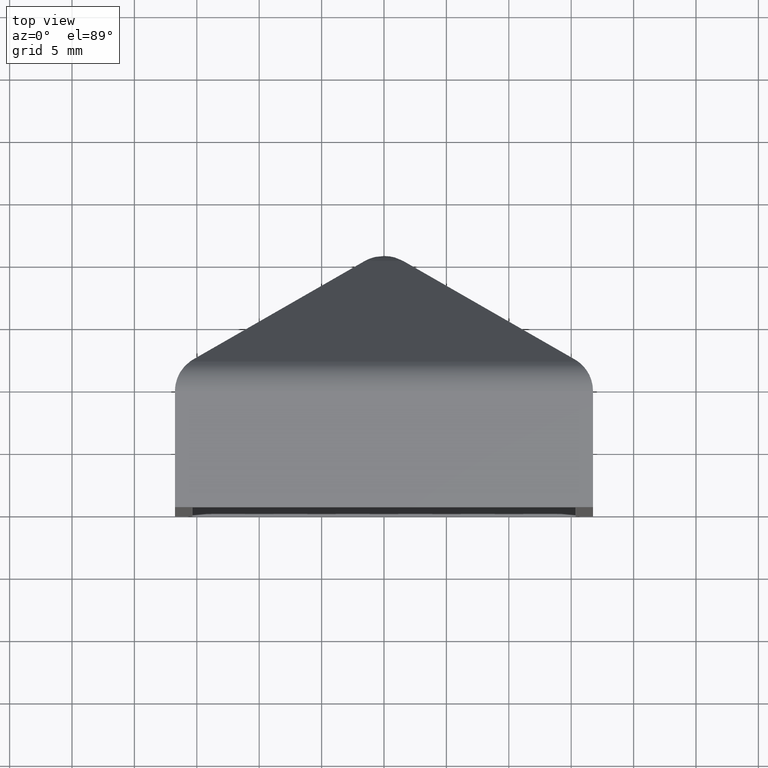
[diagram: clean part render]
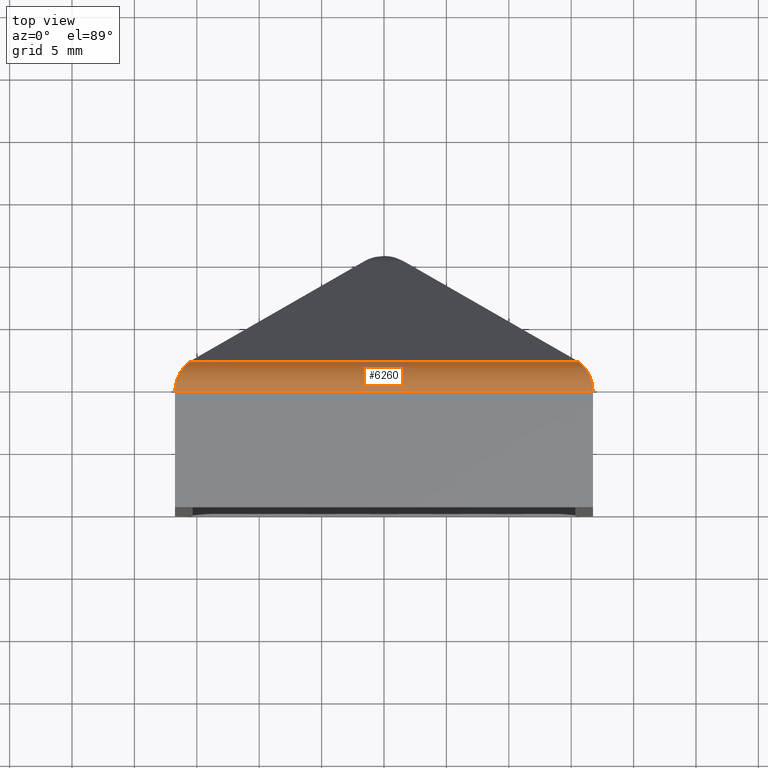
[diagram: same view with one face highlighted and labeled with its STEP entity id]
A machine part, top view. The second image highlights one B-rep face of the part: STEP entity #6260.
In plain terms, the highlighted cylindrical surface (edge-blend (fillet) strip) has radius 2.6544 mm, axis along (1, 0, -0).
Its self-contained STEP definition (entity closure, byte-faithful):
#17 = DIRECTION ( 'NONE',  ( 1.000000000000000000, 1.369541201499284725E-15, -0.000000000000000000 ) ) ;
#318 = CARTESIAN_POINT ( 'NONE',  ( -16.55965060624624030, 10.35558613479574319, 21.53297687906777469 ) ) ;
#382 = CARTESIAN_POINT ( 'NONE',  ( -16.74999999999998934, 9.296493103079967568, 21.75000000000000000 ) ) ;
#386 = CARTESIAN_POINT ( 'NONE',  ( 16.70326928354632301, 9.841064627597743808, 21.69708704955368717 ) ) ;
#445 = CARTESIAN_POINT ( 'NONE',  ( -16.70995727020544663, 9.851522843684412223, 21.70495378420360311 ) ) ;
#1237 = EDGE_CURVE ( 'NONE', #13523, #12010, #15085, .T. ) ;
#1558 = CARTESIAN_POINT ( 'NONE',  ( 15.66867918130274084, 11.60893486939139763, 20.42105435541788339 ) ) ;
#1667 = CARTESIAN_POINT ( 'NONE',  ( 16.74033533030245735, 9.572631146092316357, 21.73909050069356752 ) ) ;
#1726 = CARTESIAN_POINT ( 'NONE',  ( 16.67551108115544167, 9.973934257418351379, 21.66558790018897440 ) ) ;
#2297 = B_SPLINE_CURVE_WITH_KNOTS ( 'NONE', 3,
 ( #4275, #2778, #4161, #7082, #14112, #12531, #5839, #11384, #16614, #318, #8430, #445, #9785, #382 ),
 .UNSPECIFIED., .F., .F.,
 ( 4, 2, 2, 2, 2, 2, 4 ),
 ( 0.000000000000000000, 0.0008182723503332063348, 0.001227408525499806792, 0.001636544700666407682, 0.002045680875833008356, 0.002454817050999608813, 0.003273089401332814497 ),
 .UNSPECIFIED. ) ;
#2778 = CARTESIAN_POINT ( 'NONE',  ( -15.66888271674499578, 11.60878453490745343, 20.42138244692268145 ) ) ;
#3070 = CARTESIAN_POINT ( 'NONE',  ( 16.23055599966765072, 11.00033405241351403, 21.14613417132414952 ) ) ;
#3130 = CARTESIAN_POINT ( 'NONE',  ( 16.40821662155761373, 10.69218017578038804, 21.35687643289709570 ) ) ;
#3611 = VECTOR ( 'NONE', #17, 1000.000000000000000 ) ;
#4138 = EDGE_CURVE ( 'NONE', #13523, #12309, #2297, .T. ) ;
#4156 = ORIENTED_EDGE ( 'NONE', *, *, #9097, .T. ) ;
#4161 = CARTESIAN_POINT ( 'NONE',  ( -15.81323455271781775, 11.48398258419699758, 20.61738217118396221 ) ) ;
#4200 = VERTEX_POINT ( 'NONE', #4577 ) ;
#4275 = CARTESIAN_POINT ( 'NONE',  ( -15.53236989041281291, 11.70961505891845533, 20.20132888707435015 ) ) ;
#4577 = CARTESIAN_POINT ( 'NONE',  ( 16.74999999999999289, 9.296493103079967568, 21.75000000000000000 ) ) ;
#5139 = CARTESIAN_POINT ( 'NONE',  ( -26.75000000000000355, 9.296493103079908948, 21.75000000000000000 ) ) ;
#5276 = FACE_OUTER_BOUND ( 'NONE', #14677, .T. ) ;
#5356 = CARTESIAN_POINT ( 'NONE',  ( -26.75000000000000711, 11.70961505891843935, 20.20132888707435015 ) ) ;
#5472 = CARTESIAN_POINT ( 'NONE',  ( -15.53236989041281291, 11.70961505891845533, 20.20132888707435015 ) ) ;
#5724 = CARTESIAN_POINT ( 'NONE',  ( 16.09692896685115215, 11.17674144436293204, 20.98432485077248799 ) ) ;
#5839 = CARTESIAN_POINT ( 'NONE',  ( -16.28786870805078379, 10.90062456753936360, 21.21409796190396690 ) ) ;
#5844 = CARTESIAN_POINT ( 'NONE',  ( 15.81448601036917267, 11.48311307768285694, 20.61918057407262594 ) ) ;
#6260 = ADVANCED_FACE ( 'NONE', ( #5276 ), #9705, .T. ) ;
#6600 = AXIS2_PLACEMENT_3D ( 'NONE', #10994, #15022, #9447 ) ;
#7082 = CARTESIAN_POINT ( 'NONE',  ( -16.02207652911907942, 11.25817095843943072, 20.88764222282224381 ) ) ;
#8430 = CARTESIAN_POINT ( 'NONE',  ( -16.60342860595006087, 10.23206589786681953, 21.58322432880267172 ) ) ;
#8510 = VECTOR ( 'NONE', #13060, 1000.000000000000000 ) ;
#9097 = EDGE_CURVE ( 'NONE', #4200, #12010, #9371, .T. ) ;
#9371 = B_SPLINE_CURVE_WITH_KNOTS ( 'NONE', 3,
 ( #11159, #16619, #1667, #386, #1726, #12533, #15244, #9842, #3130, #3070, #5724, #5844, #1558, #12585 ),
 .UNSPECIFIED., .F., .F.,
 ( 4, 2, 2, 2, 2, 2, 4 ),
 ( 0.000000000000000000, 0.0004112258583125507879, 0.0008224517166251015757, 0.001233677574937652472, 0.001644903433250203151, 0.002467355149875301908, 0.003289806866500400665 ),
 .UNSPECIFIED. ) ;
#9447 = DIRECTION ( 'NONE',  ( -1.307062280233793687E-15, 1.000000000000000000, 0.000000000000000000 ) ) ;
#9705 = CYLINDRICAL_SURFACE ( 'NONE', #6600, 2.654385337577820358 ) ;
#9785 = CARTESIAN_POINT ( 'NONE',  ( -16.74999999999998934, 9.575787457362899602, 21.74999999999999289 ) ) ;
#9842 = CARTESIAN_POINT ( 'NONE',  ( 16.46377361363001413, 10.58147893519188187, 21.42180310184390279 ) ) ;
#10994 = CARTESIAN_POINT ( 'NONE',  ( -26.75000000000000355, 9.296493103079908948, 19.09561466242217875 ) ) ;
#11159 = CARTESIAN_POINT ( 'NONE',  ( 16.74999999999999289, 9.296493103079967568, 21.75000000000000000 ) ) ;
#11384 = CARTESIAN_POINT ( 'NONE',  ( -16.40638478427582214, 10.69564828119277777, 21.35472378617252431 ) ) ;
#11635 = ORIENTED_EDGE ( 'NONE', *, *, #1237, .F. ) ;
#12010 = VERTEX_POINT ( 'NONE', #15995 ) ;
#12309 = VERTEX_POINT ( 'NONE', #16586 ) ;
#12519 = ORIENTED_EDGE ( 'NONE', *, *, #15910, .T. ) ;
#12531 = CARTESIAN_POINT ( 'NONE',  ( -16.22358229367995719, 10.99760953595603574, 21.13684467474564244 ) ) ;
#12533 = CARTESIAN_POINT ( 'NONE',  ( 16.60442991971268967, 10.22910847771391296, 21.58437289162511163 ) ) ;
#12585 = CARTESIAN_POINT ( 'NONE',  ( 15.53236989041276317, 11.70961505891849619, 20.20132888707435015 ) ) ;
#13060 = DIRECTION ( 'NONE',  ( 1.000000000000000000, 1.369541201499284725E-15, -0.000000000000000000 ) ) ;
#13523 = VERTEX_POINT ( 'NONE', #5472 ) ;
#13664 = ORIENTED_EDGE ( 'NONE', *, *, #4138, .T. ) ;
#14112 = CARTESIAN_POINT ( 'NONE',  ( -16.09062737394056697, 11.17635213454164322, 20.97352496465787652 ) ) ;
#14677 = EDGE_LOOP ( 'NONE', ( #4156, #11635, #13664, #12519 ) ) ;
#15022 = DIRECTION ( 'NONE',  ( 1.000000000000000000, 1.369541201499284725E-15, -0.000000000000000000 ) ) ;
#15085 = LINE ( 'NONE', #5356, #3611 ) ;
#15244 = CARTESIAN_POINT ( 'NONE',  ( 16.56163005934021015, 10.35029205173072064, 21.53525582871081667 ) ) ;
#15910 = EDGE_CURVE ( 'NONE', #12309, #4200, #16574, .T. ) ;
#15995 = CARTESIAN_POINT ( 'NONE',  ( 15.53236989041276317, 11.70961505891849619, 20.20132888707435015 ) ) ;
#16574 = LINE ( 'NONE', #5139, #8510 ) ;
#16586 = CARTESIAN_POINT ( 'NONE',  ( -16.74999999999998934, 9.296493103079967568, 21.75000000000000000 ) ) ;
#16614 = CARTESIAN_POINT ( 'NONE',  ( -16.46115802037954623, 10.58701112602284589, 21.41875388713945938 ) ) ;
#16619 = CARTESIAN_POINT ( 'NONE',  ( 16.75000000000000355, 9.435916837626141529, 21.75000000000000355 ) ) ;